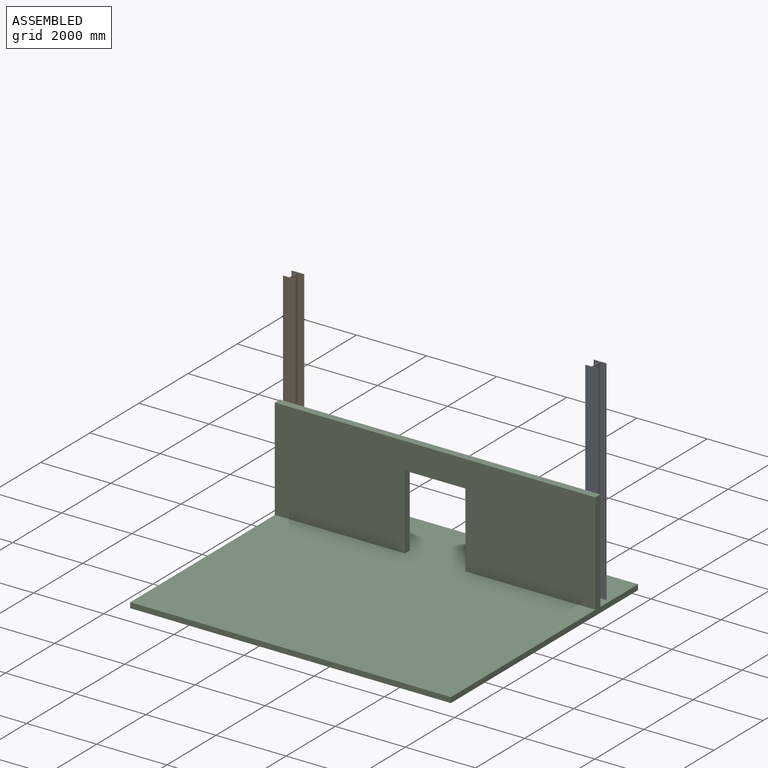
[diagram: assembled view]
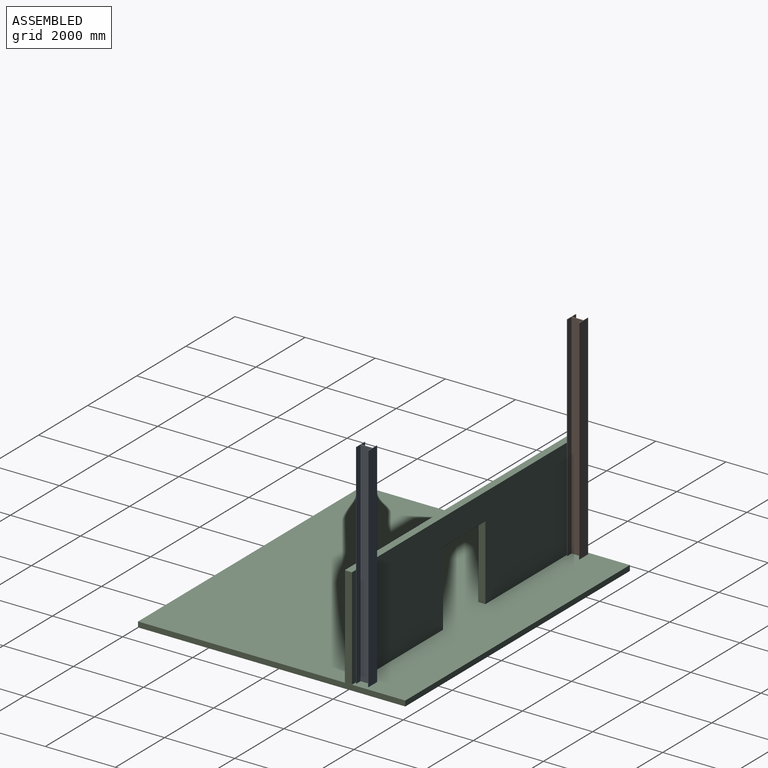
[diagram: assembled view, second angle]
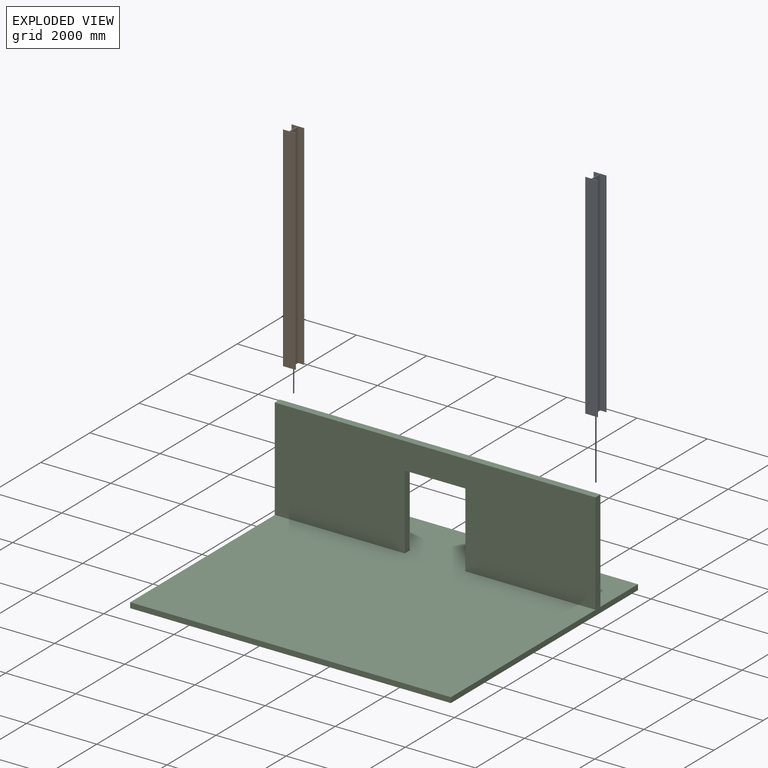
[diagram: exploded view]
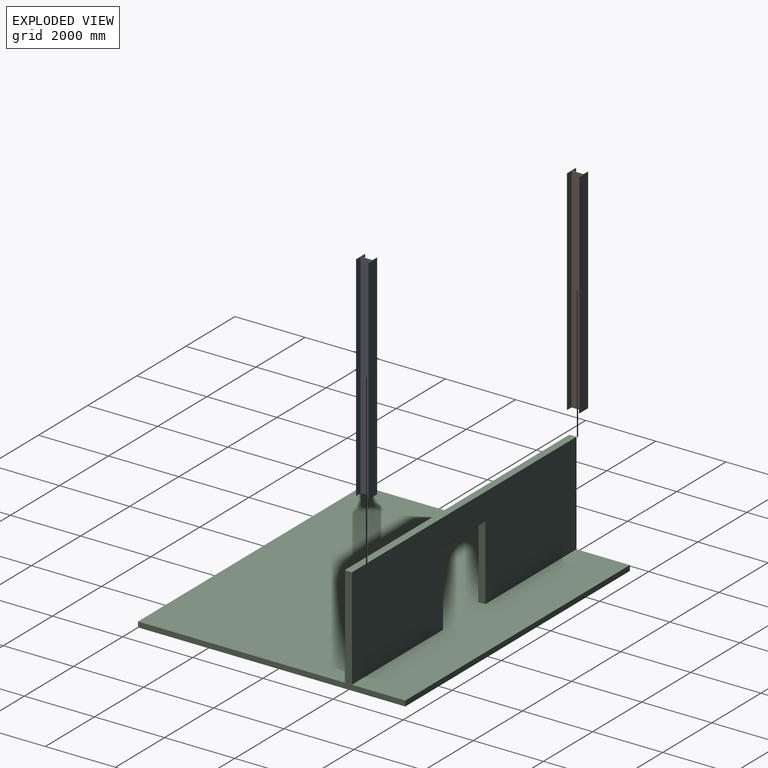
[diagram: exploded view, second angle]
ASSEMBLY  parts=3 mates=2
PART A: 14 faces, bbox 355.6x355.6x6096 mm
  f0: plane 6096x12.7mm, normal (-1,0,0), area 77419.2mm2, adj f1,f11,f12,f13
  f1: plane 6096x168.28mm, normal (0,-1,0), area 1025804.4mm2, adj f0,f2,f12,f13
  f2: plane 6096x330.2mm, normal (-1,0,0), area 2012899.2mm2, adj f1,f3,f12,f13
  f3: plane 6096x168.28mm, normal (0,1,0), area 1025804.4mm2, adj f2,f4,f12,f13
  f4: plane 6096x12.7mm, normal (-1,0,0), area 77419.2mm2, adj f3,f5,f12,f13
  f5: plane 6096x355.6mm, normal (0,-1,0), area 2167737.6mm2, adj f4,f6,f12,f13
  f6: plane 6096x12.7mm, normal (1,0,0), area 77419.2mm2, adj f5,f7,f12,f13
  f7: plane 6096x168.28mm, normal (0,1,0), area 1025804.4mm2, adj f6,f8,f12,f13
  f8: plane 6096x330.2mm, normal (1,0,0), area 2012899.2mm2, adj f7,f9,f12,f13
  f9: plane 6096x168.28mm, normal (0,-1,0), area 1025804.4mm2, adj f8,f10,f12,f13
  f10: plane 6096x12.7mm, normal (1,0,0), area 77419.2mm2, adj f9,f11,f12,f13
  f11: plane 6096x355.6mm, normal (0,1,0), area 2167737.6mm2, adj f0,f10,f12,f13
  f12: plane 355.6x355.6mm, normal (0,0,1), area 15322.6mm2, adj f0,f1,f2,f3,f4,f5,f6,f7
  f13: plane 355.6x355.6mm, normal (0,0,-1), area 15322.6mm2, adj f0,f1,f2,f3,f4,f5,f6,f7
PART B: same geometry as A
PART C: 15 faces, bbox 9147.7x7620x3048 mm
  f0: plane 203.2x3.66mm, normal (0,0,-1), area 744.5mm2, adj f1,f2,f3,f10
  f1: plane 9144x2895.6mm, normal (0,1,0), area 22792212.5mm2, adj f0,f3,f4,f5,f6,f7,f8,f14
  f2: plane 9144x2895.6mm, normal (0,-1,0), area 22792212.5mm2, adj f0,f3,f4,f5,f6,f7,f8,f14
  f3: plane 2895.6x203.2mm, normal (-1,0,0), area 588385.9mm2, adj f0,f1,f2,f5
  f4: plane 2895.6x203.2mm, normal (1,0,0), area 588385.9mm2, adj f1,f2,f5,f14
  f5: plane 9144x203.2mm, normal (0,0,1), area 1858060.8mm2, adj f1,f2,f3,f4
  f6: plane 2133.6x203.2mm, normal (1,0,0), area 433547.5mm2, adj f1,f2,f8,f14
  f7: plane 2133.6x203.2mm, normal (-1,0,0), area 433547.5mm2, adj f1,f2,f8,f14
  f8: plane 1727.2x203.2mm, normal (0,0,-1), area 350967mm2, adj f1,f2,f6,f7
  f9: plane 9144x152.4mm, normal (0,1,0), area 1393545.6mm2, adj f10,f12,f13,f14
  f10: plane 7620x152.4mm, normal (-1,0,0), area 1161288mm2, adj f0,f9,f11,f13,f14
  f11: plane 9144x152.4mm, normal (0,-1,0), area 1393545.6mm2, adj f10,f12,f13,f14
  f12: plane 7620x152.4mm, normal (1,0,0), area 1161288mm2, adj f9,f11,f13,f14
  f13: plane 9144x7620mm, normal (0,0,-1), area 69677280mm2, adj f9,f10,f11,f12
  f14: plane 9144x7620mm, normal (0,0,1), area 68170930.8mm2, adj f1,f2,f4,f6,f7,f9,f10,f11
PLACE A t=(1435.31,563.06,-1815.05)mm
PLACE B t=(-7172.4,550.42,-1815.05)mm
PLACE C t=(-2853.28,140.88,-1815.05)mm
MATE planar B.f13 <-> C.f14  axis (0,0,-1) through (-7172.4,550.42,-1815.05)mm
MATE planar A.f13 <-> C.f14  axis (0,0,-1) through (1435.31,563.06,-1815.05)mm
